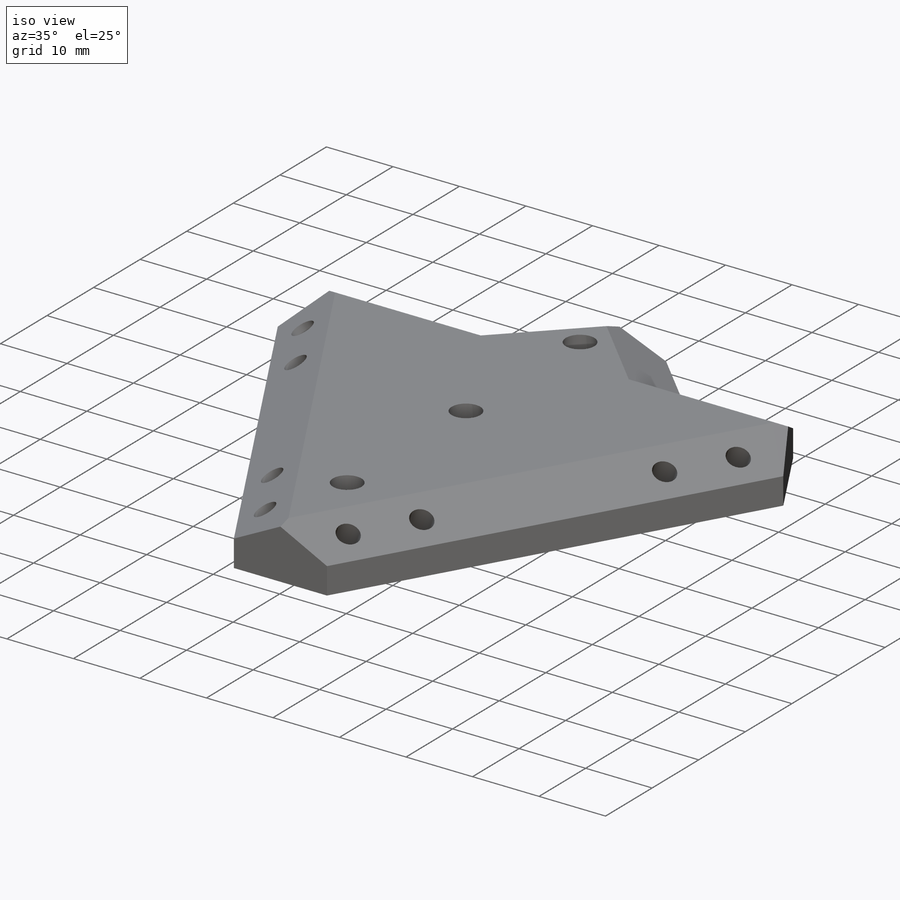
[diagram: iso view]
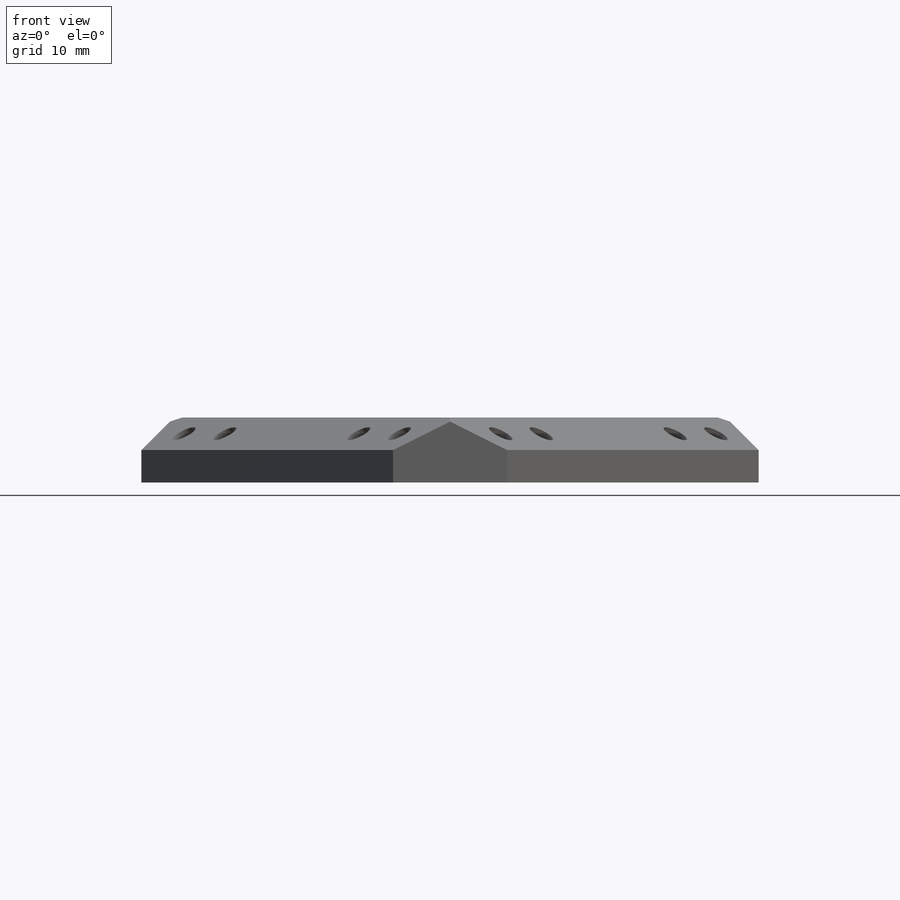
[diagram: front view]
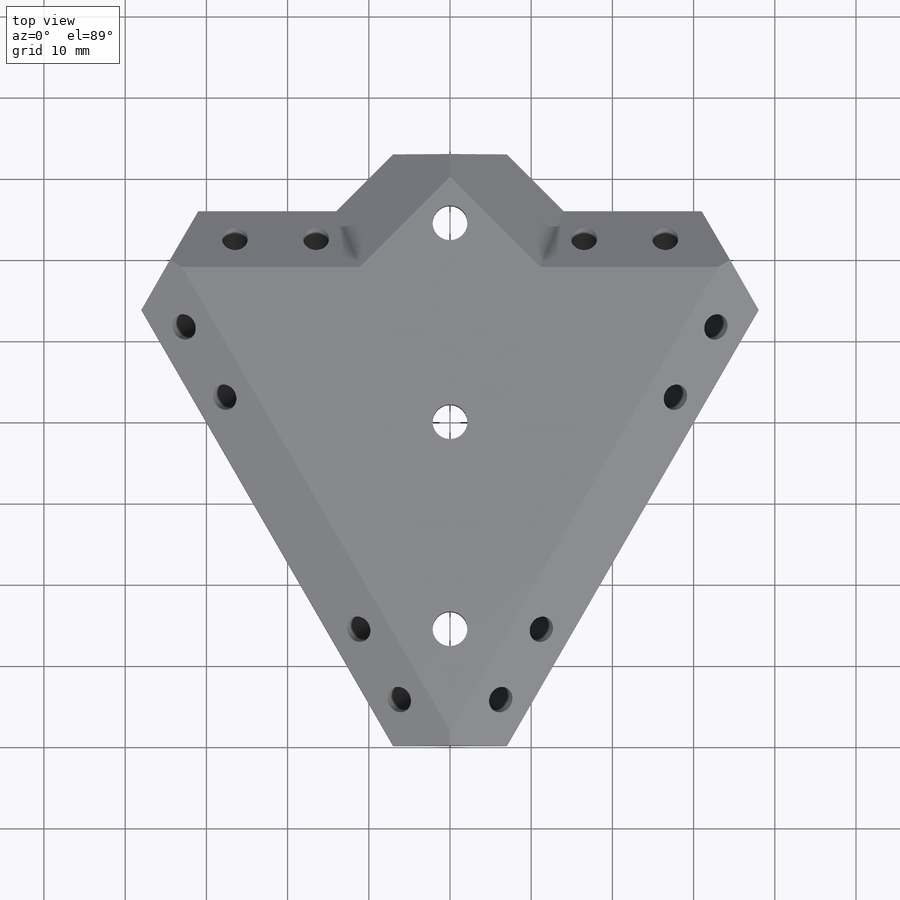
[diagram: top view]
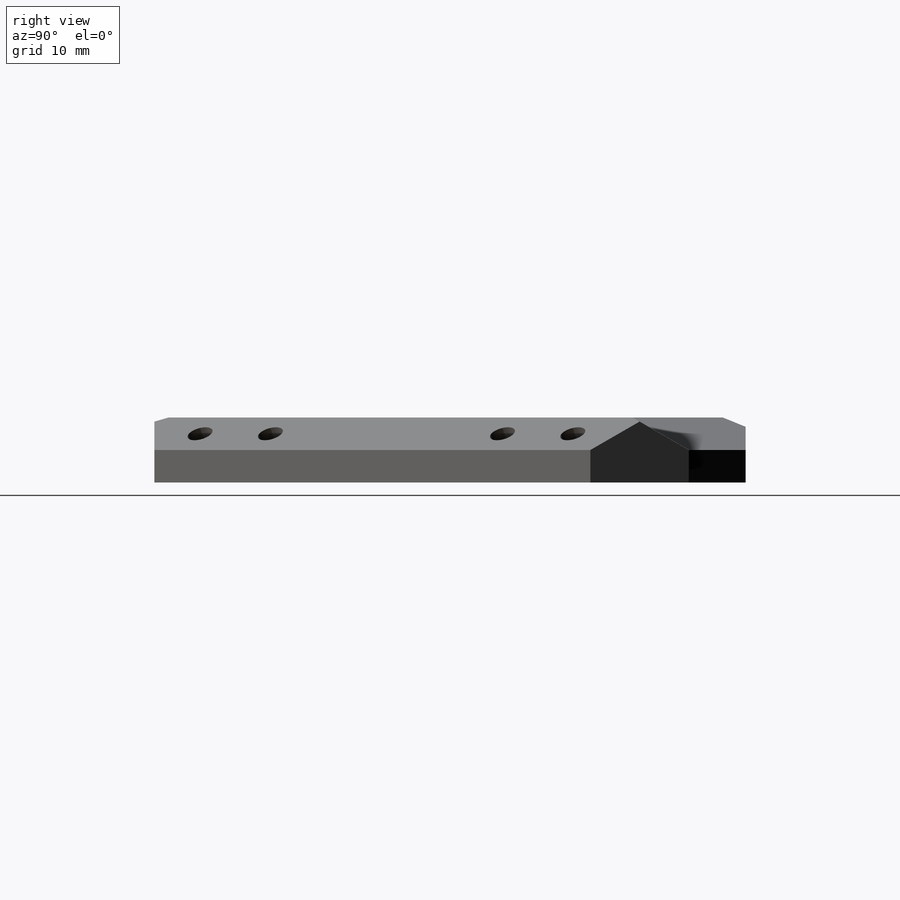
[diagram: right view]
SOLIDWORKS PART (.sldprt)
format: sldprt  version: not decoded by parser v0  size: 255,488 bytes
history: native  units: mm
features: sketch x3, cut_extrude x2, material x1, extrude x1, chamfer x1, pattern_circular x1 (+13 scaffold rows collapsed)
feature tree (22):
  scaffold x13  (default folders/planes/origin — collapsed)
  material  "Material <not specified>"
  sketch  "Sketch1"  dims[c1.D4=~5.779765mm c1.D6=4.3mm c1.D8=4.0mm c1.D1=~45.309345mm c2.D1=120.0deg c2.D2=~46.342002mm c3.D2=120.0deg c4.D2=60.0mm c4.D3=14.0mm c4.D4=65.0mm c4.D5=45.0mm c4.D6=10.0mm c5.D4=50.0mm c5.D5=26.0mm c5.D6=24.0mm c6.D5=25.5mm c6.D7=62.0mm c6.D2=7.0mm]
  extrude  "Boss-Extrude1"  Depth=8mm
  chamfer  "Chamfer1"  Distance=4mm Angle=60deg
  sketch  "Sketch2"  dims[c1.D1=3.2mm c1.D3=3.2mm c1.D4=3.2mm c1.D5=3.2mm c1.D6=10.0mm c1.D2=53.0mm c2.D3=10.0mm c2.D4=10.0mm c2.D5=33.0mm]
  cut_extrude  "Cut-Extrude1"  [1 undecoded]
  sketch  "Sketch3"  dims[D1=6.0mm]
  cut_extrude  "Cut-Extrude2"  Depth=6mm
  pattern_circular  "CirPattern1"  Count=3 Angle=120deg
decode coverage: 7 of 8 modeling features carry decoded parameters
note: ~ marks probable driven/reference dimensions
note: 1 parameter value undecoded
note: suppression state not decoded; provenance and decode notes live in map.json
